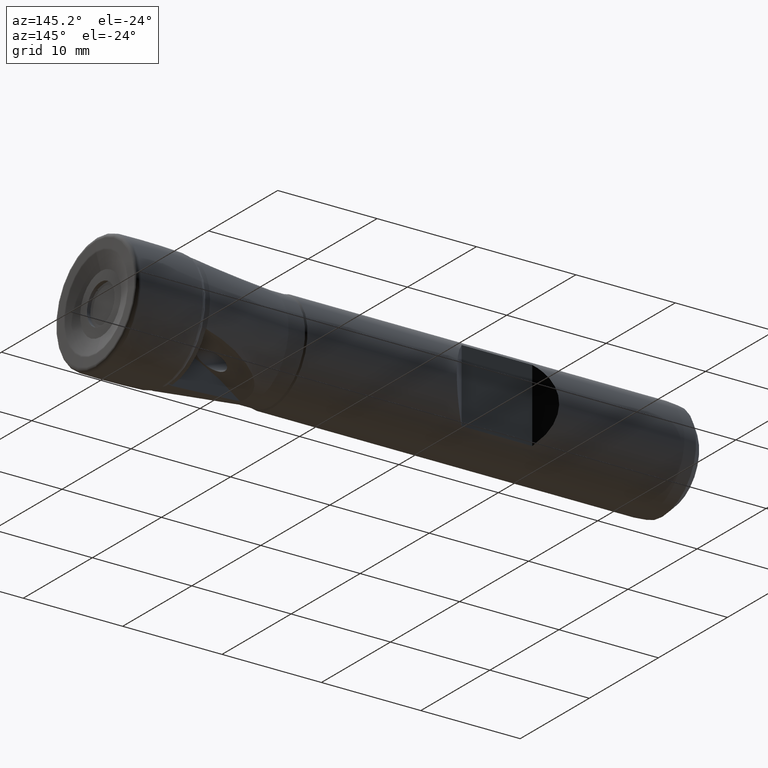
[diagram: clean part render]
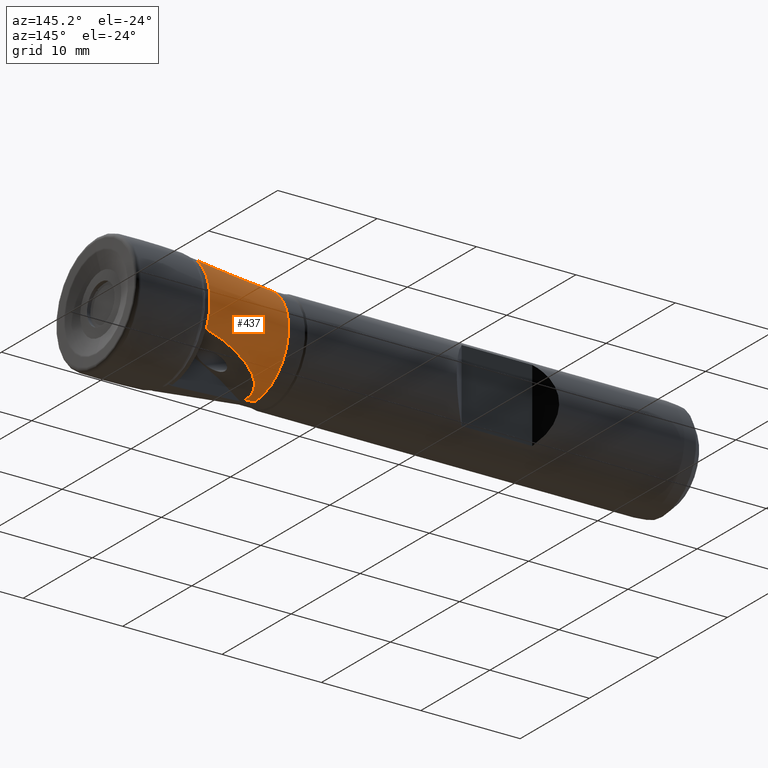
[diagram: same view with one face highlighted and labeled with its STEP entity id]
A machine part, auxiliary view. The second image highlights one B-rep face of the part: STEP entity #437.
In plain terms, the highlighted conical surface has half-angle 5.711 deg.
Its self-contained STEP definition (entity closure, byte-faithful):
#397 = AXIS2_PLACEMENT_3D ( 'NONE', #2691, #2692, #2693 ) ;
#399 = VECTOR ( 'NONE', #2707, 1000.000000000000100 ) ;
#410 = VECTOR ( 'NONE', #2697, 1000.000000000000100 ) ;
#414 = AXIS2_PLACEMENT_3D ( 'NONE', #2710, #2711, #2712 ) ;
#416 = CIRCLE ( 'NONE', #414, 5.750000000000000000 ) ;
#417 = CIRCLE ( 'NONE', #397, 4.899999999999998600 ) ;
#437 = ADVANCED_FACE ( 'NONE', ( #1054 ), #1375, .T. ) ;
#477 = EDGE_LOOP ( 'NONE', ( #614, #498, #495, #584, #619, #492, #494, #570, #571 ) ) ;
#492 = ORIENTED_EDGE ( 'NONE', *, *, #1185, .F. ) ;
#494 = ORIENTED_EDGE ( 'NONE', *, *, #1186, .F. ) ;
#495 = ORIENTED_EDGE ( 'NONE', *, *, #1182, .F. ) ;
#498 = ORIENTED_EDGE ( 'NONE', *, *, #1181, .T. ) ;
#570 = ORIENTED_EDGE ( 'NONE', *, *, #794, .F. ) ;
#571 = ORIENTED_EDGE ( 'NONE', *, *, #795, .F. ) ;
#584 = ORIENTED_EDGE ( 'NONE', *, *, #1183, .F. ) ;
#614 = ORIENTED_EDGE ( 'NONE', *, *, #1179, .T. ) ;
#619 = ORIENTED_EDGE ( 'NONE', *, *, #1184, .T. ) ;
#794 = EDGE_CURVE ( 'NONE', #2415, #2417, #1666, .T. ) ;
#795 = EDGE_CURVE ( 'NONE', #2414, #2415, #2039, .T. ) ;
#1051 = DIRECTION ( 'NONE',  ( 0.0000000000000000000, 0.0000000000000000000, -1.000000000000000000 ) ) ;
#1053 = CARTESIAN_POINT ( 'NONE',  ( -7.000000000000000000, 0.0000000000000000000, 0.0000000000000000000 ) ) ;
#1054 = FACE_OUTER_BOUND ( 'NONE', #477, .T. ) ;
#1055 = DIRECTION ( 'NONE',  ( 1.000000000000000000, -0.0000000000000000000, -0.0000000000000000000 ) ) ;
#1179 = EDGE_CURVE ( 'NONE', #2414, #2418, #417, .T. ) ;
#1181 = EDGE_CURVE ( 'NONE', #2418, #2411, #2695, .T. ) ;
#1182 = EDGE_CURVE ( 'NONE', #2420, #2411, #1699, .T. ) ;
#1183 = EDGE_CURVE ( 'NONE', #2410, #2420, #1716, .T. ) ;
#1184 = EDGE_CURVE ( 'NONE', #2410, #2408, #2705, .T. ) ;
#1185 = EDGE_CURVE ( 'NONE', #2409, #2408, #416, .T. ) ;
#1186 = EDGE_CURVE ( 'NONE', #2417, #2409, #1700, .T. ) ;
#1369 = VECTOR ( 'NONE', #2041, 1000.000000000000100 ) ;
#1375 = CONICAL_SURFACE ( 'NONE', #1500, 5.750000000000000000, 0.09966865249116213500 ) ;
#1500 = AXIS2_PLACEMENT_3D ( 'NONE', #1053, #1055, #1051 ) ;
#1666 = B_SPLINE_CURVE_WITH_KNOTS ( 'NONE', 3,
 ( #2035, #2034, #2033, #2036, #2037, #2038 ),
 .UNSPECIFIED., .F., .F.,
 ( 4, 2, 4 ),
 ( 0.001463561633655356900, 0.002243951394364128300, 0.003024341155072899700 ),
 .UNSPECIFIED. ) ;
#1699 = B_SPLINE_CURVE_WITH_KNOTS ( 'NONE', 3,
 ( #2689, #2688, #2699, #2700 ),
 .UNSPECIFIED., .F., .F.,
 ( 4, 4 ),
 ( 0.0009651508288408605400, 0.001463561633655190800 ),
 .UNSPECIFIED. ) ;
#1700 = B_SPLINE_CURVE_WITH_KNOTS ( 'NONE', 3,
 ( #2708, #2709, #2714, #2715, #2716, #2717, #2718, #2719, #2720, #2721, #2722, #2723, #2724, #2725, #2726, #2727, #2728, #2729 ),
 .UNSPECIFIED., .F., .F.,
 ( 4, 2, 2, 2, 2, 2, 2, 2, 4 ),
 ( 0.0009628334089502273800, 0.001517450611708301500, 0.002072067814466375800, 0.002626685017224449400, 0.003181302219982524000, 0.004290536625498670400, 0.005399771031014818600, 0.007618239842047108000, 0.009836708653079399200 ),
 .UNSPECIFIED. ) ;
#1716 =( BOUNDED_CURVE ( )  B_SPLINE_CURVE ( 3, ( #2698, #2702, #2703, #2704 ),
 .UNSPECIFIED., .F., .T. ) 
 B_SPLINE_CURVE_WITH_KNOTS ( ( 4, 4 ),
 ( 2.828665200001727600, 2.857800404195028700 ),
 .UNSPECIFIED. ) 
 CURVE ( )  GEOMETRIC_REPRESENTATION_ITEM ( )  RATIONAL_B_SPLINE_CURVE ( ( 1.000000000000000000, 0.9999292629073540700, 0.9999292629073540700, 1.000000000000000000 ) ) 
 REPRESENTATION_ITEM ( '' )  );
#2033 = CARTESIAN_POINT ( 'NONE',  ( -14.47622323920405000, 0.5181493976432465200, -4.982314702678822400 ) ) ;
#2034 = CARTESIAN_POINT ( 'NONE',  ( -14.47783063147487100, 0.2593211090767322800, -5.002216936852514500 ) ) ;
#2035 = CARTESIAN_POINT ( 'NONE',  ( -14.45403514282820200, 3.147920952446637800E-016, -5.004596485717179600 ) ) ;
#2036 = CARTESIAN_POINT ( 'NONE',  ( -14.41961933930258200, 1.034840771450745000, -4.906903914854549200 ) ) ;
#2037 = CARTESIAN_POINT ( 'NONE',  ( -14.36495101730851500, 1.285919685479161200, -4.852148875525086800 ) ) ;
#2038 = CARTESIAN_POINT ( 'NONE',  ( -14.28690593965302800, 1.524965598386491200, -4.784143400324683900 ) ) ;
#2039 = LINE ( 'NONE', #2040, #1369 ) ;
#2040 = CARTESIAN_POINT ( 'NONE',  ( -7.000000000000000000, 0.0000000000000000000, -5.750000000000000000 ) ) ;
#2041 = DIRECTION ( 'NONE',  ( 0.9950371902099890400, 0.0000000000000000000, -0.09950371902099901200 ) ) ;
#2408 = VERTEX_POINT ( 'NONE', #3041 ) ;
#2409 = VERTEX_POINT ( 'NONE', #3042 ) ;
#2410 = VERTEX_POINT ( 'NONE', #3043 ) ;
#2411 = VERTEX_POINT ( 'NONE', #3044 ) ;
#2414 = VERTEX_POINT ( 'NONE', #3047 ) ;
#2415 = VERTEX_POINT ( 'NONE', #3048 ) ;
#2417 = VERTEX_POINT ( 'NONE', #3050 ) ;
#2418 = VERTEX_POINT ( 'NONE', #3051 ) ;
#2420 = VERTEX_POINT ( 'NONE', #3053 ) ;
#2688 = CARTESIAN_POINT ( 'NONE',  ( -14.41284788774308400, 0.3327832318707473200, 5.000312492414416900 ) ) ;
#2689 = CARTESIAN_POINT ( 'NONE',  ( -14.37735102717248400, 0.4955571224977747300, 4.987707142452790300 ) ) ;
#2691 = CARTESIAN_POINT ( 'NONE',  ( -15.50000000000000200, 0.0000000000000000000, 0.0000000000000000000 ) ) ;
#2692 = DIRECTION ( 'NONE',  ( 1.000000000000000000, -0.0000000000000000000, -0.0000000000000000000 ) ) ;
#2693 = DIRECTION ( 'NONE',  ( 0.0000000000000000000, 0.0000000000000000000, -1.000000000000000000 ) ) ;
#2695 = LINE ( 'NONE', #2696, #410 ) ;
#2696 = CARTESIAN_POINT ( 'NONE',  ( -7.000000000000000000, 7.041719095097280900E-016, 5.750000000000000000 ) ) ;
#2697 = DIRECTION ( 'NONE',  ( 0.9950371902099890400, 1.218569110023240400E-017, 0.09950371902099901200 ) ) ;
#2698 = CARTESIAN_POINT ( 'NONE',  ( -9.662439955842149400, 0.0000000000000000000, 5.483756004415780300 ) ) ;
#2699 = CARTESIAN_POINT ( 'NONE',  ( -14.43883770015985100, 0.1656203722648702500, 5.006116229984014500 ) ) ;
#2700 = CARTESIAN_POINT ( 'NONE',  ( -14.45403514282819800, 8.398108588283952000E-016, 5.004596485717179600 ) ) ;
#2702 = CARTESIAN_POINT ( 'NONE',  ( -11.30846955086550300, 0.1730046818095711500, 5.319153044914112400 ) ) ;
#2703 = CARTESIAN_POINT ( 'NONE',  ( -12.88021775554060800, 0.3382020748921333900, 5.153791727080922600 ) ) ;
#2704 = CARTESIAN_POINT ( 'NONE',  ( -14.37735102717248400, 0.4955571224977747300, 4.987707142452790300 ) ) ;
#2705 = LINE ( 'NONE', #2706, #399 ) ;
#2706 = CARTESIAN_POINT ( 'NONE',  ( -7.000000000000000000, 7.041719095097280900E-016, 5.750000000000000000 ) ) ;
#2707 = DIRECTION ( 'NONE',  ( 0.9950371902099890400, 1.218569110023240400E-017, 0.09950371902099901200 ) ) ;
#2708 = CARTESIAN_POINT ( 'NONE',  ( -14.28690593965302800, 1.524965598386491200, -4.784143400324683900 ) ) ;
#2709 = CARTESIAN_POINT ( 'NONE',  ( -14.23132069440632100, 1.695218817338117300, -4.735708558170777800 ) ) ;
#2710 = CARTESIAN_POINT ( 'NONE',  ( -7.000000000000000000, 0.0000000000000000000, 0.0000000000000000000 ) ) ;
#2711 = DIRECTION ( 'NONE',  ( 1.000000000000000000, -0.0000000000000000000, -0.0000000000000000000 ) ) ;
#2712 = DIRECTION ( 'NONE',  ( 0.0000000000000000000, 0.0000000000000000000, -1.000000000000000000 ) ) ;
#2714 = CARTESIAN_POINT ( 'NONE',  ( -14.15498650464888400, 1.858502698559014100, -4.681719271935647500 ) ) ;
#2715 = CARTESIAN_POINT ( 'NONE',  ( -13.97490108848493100, 2.163267429934321300, -4.568856969753275300 ) ) ;
#2716 = CARTESIAN_POINT ( 'NONE',  ( -13.87176348868034200, 2.304647266172010800, -4.510211538939929100 ) ) ;
#2717 = CARTESIAN_POINT ( 'NONE',  ( -13.64577929410698000, 2.571041327338190000, -4.390044185900142900 ) ) ;
#2718 = CARTESIAN_POINT ( 'NONE',  ( -13.52213072487697700, 2.696629806290607300, -4.328169353370618900 ) ) ;
#2719 = CARTESIAN_POINT ( 'NONE',  ( -13.26256967022649400, 2.931342737613363600, -4.204450395466875700 ) ) ;
#2720 = CARTESIAN_POINT ( 'NONE',  ( -13.12706879849296200, 3.040289074394175700, -4.142763761206146500 ) ) ;
#2721 = CARTESIAN_POINT ( 'NONE',  ( -12.70709748180002100, 3.347847126995446400, -3.958944514090704900 ) ) ;
#2722 = CARTESIAN_POINT ( 'NONE',  ( -12.40933898188076200, 3.527457221398430800, -3.838069100266631000 ) ) ;
#2723 = CARTESIAN_POINT ( 'NONE',  ( -11.78844273261952000, 3.852891828078600400, -3.602730418837889900 ) ) ;
#2724 = CARTESIAN_POINT ( 'NONE',  ( -11.46660925778533800, 3.997580623318594200, -3.488876741405122100 ) ) ;
#2725 = CARTESIAN_POINT ( 'NONE',  ( -10.48820456541091900, 4.388554580612668200, -3.165968230353138200 ) ) ;
#2726 = CARTESIAN_POINT ( 'NONE',  ( -9.813018258487808500, 4.595736090145758900, -2.973238509127351700 ) ) ;
#2727 = CARTESIAN_POINT ( 'NONE',  ( -8.429454244907670800, 4.951214586460230800, -2.641744282481493400 ) ) ;
#2728 = CARTESIAN_POINT ( 'NONE',  ( -7.718964872608788500, 5.098936119300136100, -2.502834366326308400 ) ) ;
#2729 = CARTESIAN_POINT ( 'NONE',  ( -7.000000000000000900, 5.226766879518145900, -2.396540837785199300 ) ) ;
#3041 = CARTESIAN_POINT ( 'NONE',  ( -7.000000000000000000, 0.0000000000000000000, 5.750000000000000000 ) ) ;
#3042 = CARTESIAN_POINT ( 'NONE',  ( -7.000000000000000900, 5.226766879518145900, -2.396540837785199300 ) ) ;
#3043 = CARTESIAN_POINT ( 'NONE',  ( -9.662439955842149400, 0.0000000000000000000, 5.483756004415780300 ) ) ;
#3044 = CARTESIAN_POINT ( 'NONE',  ( -14.45403514282819800, 8.398108588283952000E-016, 5.004596485717179600 ) ) ;
#3047 = CARTESIAN_POINT ( 'NONE',  ( -15.50000000000000200, 0.0000000000000000000, -4.899999999999998600 ) ) ;
#3048 = CARTESIAN_POINT ( 'NONE',  ( -14.45403514282820200, 3.147920952446637800E-016, -5.004596485717179600 ) ) ;
#3050 = CARTESIAN_POINT ( 'NONE',  ( -14.28690593965302800, 1.524965598386491200, -4.784143400324683900 ) ) ;
#3051 = CARTESIAN_POINT ( 'NONE',  ( -15.50000000000000200, 6.521244205459655300E-016, 4.899999999999998600 ) ) ;
#3053 = CARTESIAN_POINT ( 'NONE',  ( -14.37735102717248400, 0.4955571224977747300, 4.987707142452790300 ) ) ;